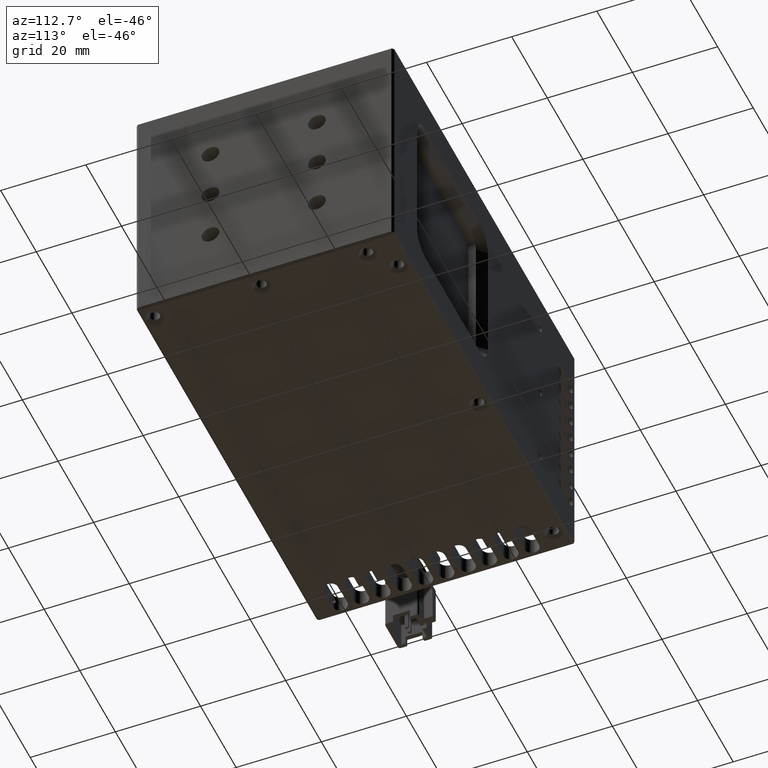
[diagram: clean part render]
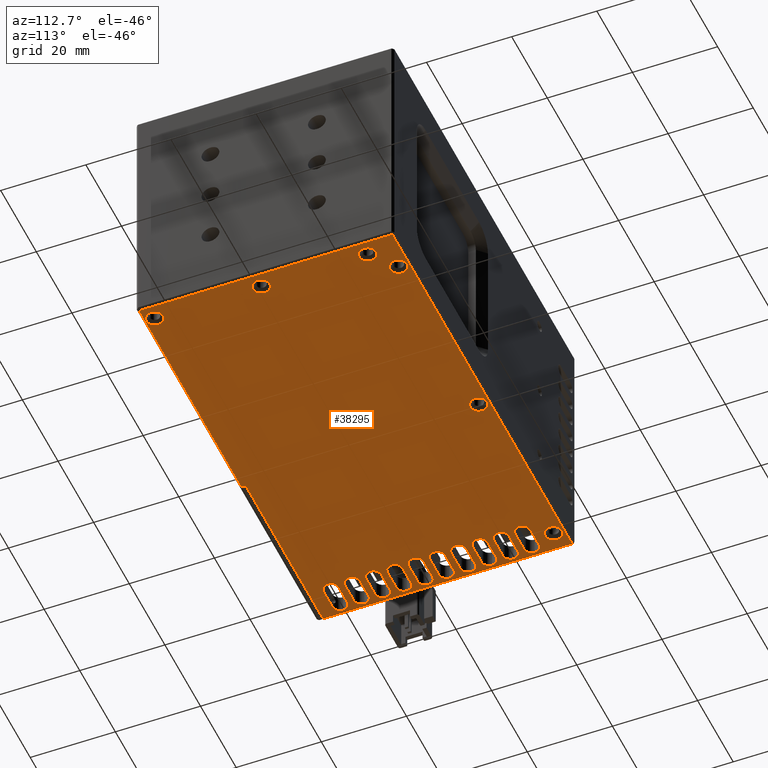
[diagram: same view with one face highlighted and labeled with its STEP entity id]
A machine part, auxiliary view. The second image highlights one B-rep face of the part: STEP entity #38295.
In plain terms, the highlighted planar face has unit normal (0, -0, 1).
Its self-contained STEP definition (entity closure, byte-faithful):
#146 = VERTEX_POINT ( 'NONE', #67677 ) ;
#159 = EDGE_CURVE ( 'NONE', #49219, #55773, #52544, .T. ) ;
#222 = DIRECTION ( 'NONE',  ( -1.000000000000000000, -0.0000000000000000000, 0.0000000000000000000 ) ) ;
#243 = VECTOR ( 'NONE', #44348, 1000.000000000000000 ) ;
#397 = CARTESIAN_POINT ( 'NONE',  ( 33.42575077608847800, -7.223006669097340900, 9.549652735252323100E-012 ) ) ;
#432 = DIRECTION ( 'NONE',  ( -0.0000000000000000000, -0.0000000000000000000, -1.000000000000000000 ) ) ;
#605 = DIRECTION ( 'NONE',  ( 0.0000000000000000000, 0.0000000000000000000, -1.000000000000000000 ) ) ;
#653 = CARTESIAN_POINT ( 'NONE',  ( -60.57424922391150800, 25.52599333090264000, 9.549652735252323100E-012 ) ) ;
#772 = DIRECTION ( 'NONE',  ( 1.000000000000000000, 0.0000000000000000000, -0.0000000000000000000 ) ) ;
#947 = LINE ( 'NONE', #57857, #29126 ) ;
#1375 = ORIENTED_EDGE ( 'NONE', *, *, #4445, .F. ) ;
#1410 = ORIENTED_EDGE ( 'NONE', *, *, #66825, .F. ) ;
#1553 = EDGE_LOOP ( 'NONE', ( #23253, #20449, #25159, #62394, #11263 ) ) ;
#1564 = VERTEX_POINT ( 'NONE', #19319 ) ;
#1671 = AXIS2_PLACEMENT_3D ( 'NONE', #5144, #42295, #10448 ) ;
#1757 = CARTESIAN_POINT ( 'NONE',  ( 23.42575077608848800, 49.77699333090261300, -4.729376612555569200E-011 ) ) ;
#1788 = VERTEX_POINT ( 'NONE', #36978 ) ;
#1918 = LINE ( 'NONE', #39029, #243 ) ;
#2104 = LINE ( 'NONE', #59183, #53509 ) ;
#2108 = CARTESIAN_POINT ( 'NONE',  ( 29.42575077608846700, 45.02699333090264100, 9.549652735252323100E-012 ) ) ;
#2237 = CARTESIAN_POINT ( 'NONE',  ( -67.32424922391153600, 33.77599333090262900, 9.547918011776346200E-012 ) ) ;
#2503 = CIRCLE ( 'NONE', #4026, 1.750000000000001600 ) ;
#2616 = CARTESIAN_POINT ( 'NONE',  ( -67.32424922391152200, 23.77599333090263700, 9.547918011776346200E-012 ) ) ;
#2688 = DIRECTION ( 'NONE',  ( -1.000000000000000000, 0.0000000000000000000, 0.0000000000000000000 ) ) ;
#2730 = AXIS2_PLACEMENT_3D ( 'NONE', #27234, #64318, #32608 ) ;
#2892 = EDGE_CURVE ( 'NONE', #65275, #54773, #36508, .T. ) ;
#2955 = EDGE_LOOP ( 'NONE', ( #34500, #15424 ) ) ;
#2997 = LINE ( 'NONE', #19828, #65205 ) ;
#3525 = CARTESIAN_POINT ( 'NONE',  ( 21.42575077608801900, 49.77699333090261300, -4.729376612555569200E-011 ) ) ;
#3727 = ORIENTED_EDGE ( 'NONE', *, *, #41722, .F. ) ;
#3840 = CIRCLE ( 'NONE', #33547, 1.750000000000001600 ) ;
#4026 = AXIS2_PLACEMENT_3D ( 'NONE', #30935, #67976, #36264 ) ;
#4211 = CARTESIAN_POINT ( 'NONE',  ( 33.42575077608847800, 22.02599333090263300, 9.549652735252323100E-012 ) ) ;
#4232 = VERTEX_POINT ( 'NONE', #20162 ) ;
#4268 = CARTESIAN_POINT ( 'NONE',  ( -60.57424922391149400, -2.974006669097365700, 9.549652735252323100E-012 ) ) ;
#4395 = EDGE_LOOP ( 'NONE', ( #8053, #37579, #30232, #18917, #43261 ) ) ;
#4410 = CARTESIAN_POINT ( 'NONE',  ( -68.07424922391152200, 52.77699333090263400, 9.549652735252323100E-012 ) ) ;
#4445 = EDGE_CURVE ( 'NONE', #14916, #47073, #14372, .T. ) ;
#4515 = LINE ( 'NONE', #68487, #45181 ) ;
#4652 = CARTESIAN_POINT ( 'NONE',  ( -65.57424922391152200, 17.02599333090263300, 9.547918011776346200E-012 ) ) ;
#4666 = VERTEX_POINT ( 'NONE', #56517 ) ;
#4813 = DIRECTION ( 'NONE',  ( -0.0000000000000000000, -0.0000000000000000000, -1.000000000000000000 ) ) ;
#4930 = EDGE_LOOP ( 'NONE', ( #19840, #1410, #52375, #3727, #29466 ) ) ;
#5058 = DIRECTION ( 'NONE',  ( -1.000000000000000000, 0.0000000000000000000, 0.0000000000000000000 ) ) ;
#5144 = CARTESIAN_POINT ( 'NONE',  ( -65.57424922391152200, 13.77599333090263500, 9.546183288300369400E-012 ) ) ;
#5145 = CARTESIAN_POINT ( 'NONE',  ( -60.57424922391149400, -1.224006669097364100, 9.549652735252323100E-012 ) ) ;
#5233 = EDGE_CURVE ( 'NONE', #37682, #45220, #33880, .T. ) ;
#5525 = CARTESIAN_POINT ( 'NONE',  ( -60.57424922391150800, 8.775993330902631200, 9.549652735252323100E-012 ) ) ;
#5637 = CIRCLE ( 'NONE', #11765, 1.750000000000001600 ) ;
#5750 = CIRCLE ( 'NONE', #43039, 1.750000000000001600 ) ;
#5881 = EDGE_CURVE ( 'NONE', #4232, #59340, #22772, .T. ) ;
#5928 = CIRCLE ( 'NONE', #51589, 1.750000000000001600 ) ;
#6182 = EDGE_CURVE ( 'NONE', #57569, #43001, #37697, .T. ) ;
#6259 = CARTESIAN_POINT ( 'NONE',  ( -65.57424922391152200, 5.525993330902634800, 9.547050650038357800E-012 ) ) ;
#6282 = EDGE_CURVE ( 'NONE', #52195, #24794, #33492, .T. ) ;
#6324 = AXIS2_PLACEMENT_3D ( 'NONE', #58890, #27122, #64217 ) ;
#6524 = ORIENTED_EDGE ( 'NONE', *, *, #65847, .F. ) ;
#6582 = VERTEX_POINT ( 'NONE', #58506 ) ;
#6781 = CARTESIAN_POINT ( 'NONE',  ( -65.57424922391152200, 40.52599333090263700, 9.549652735252323100E-012 ) ) ;
#6949 = CARTESIAN_POINT ( 'NONE',  ( -67.32424922391152200, 28.77599333090263700, 9.547918011776346200E-012 ) ) ;
#7011 = VERTEX_POINT ( 'NONE', #51479 ) ;
#7058 = DIRECTION ( 'NONE',  ( -1.000000000000000000, 0.0000000000000000000, 0.0000000000000000000 ) ) ;
#7227 = EDGE_CURVE ( 'NONE', #52107, #10742, #59827, .T. ) ;
#7347 = ORIENTED_EDGE ( 'NONE', *, *, #39109, .F. ) ;
#7458 = DIRECTION ( 'NONE',  ( -1.000000000000000000, 0.0000000000000000000, 0.0000000000000000000 ) ) ;
#7514 = CARTESIAN_POINT ( 'NONE',  ( -65.57424922391152200, 38.77599333090265100, 9.549652735252323100E-012 ) ) ;
#7651 = CIRCLE ( 'NONE', #8832, 1.999999999959541000 ) ;
#7829 = EDGE_CURVE ( 'NONE', #56092, #8269, #18941, .T. ) ;
#8053 = ORIENTED_EDGE ( 'NONE', *, *, #8658, .F. ) ;
#8269 = VERTEX_POINT ( 'NONE', #40552 ) ;
#8339 = DIRECTION ( 'NONE',  ( 0.0000000000000000000, -0.0000000000000000000, 1.000000000000000000 ) ) ;
#8409 = VECTOR ( 'NONE', #47661, 1000.000000000000000 ) ;
#8658 = EDGE_CURVE ( 'NONE', #18076, #31564, #12847, .T. ) ;
#8832 = AXIS2_PLACEMENT_3D ( 'NONE', #44356, #12555, #49654 ) ;
#8889 = ORIENTED_EDGE ( 'NONE', *, *, #30536, .F. ) ;
#8929 = DIRECTION ( 'NONE',  ( -0.0000000000000000000, -0.0000000000000000000, -1.000000000000000000 ) ) ;
#8970 = DIRECTION ( 'NONE',  ( -0.0000000000000000000, -0.0000000000000000000, -1.000000000000000000 ) ) ;
#8973 = VERTEX_POINT ( 'NONE', #2237 ) ;
#9135 = CIRCLE ( 'NONE', #59620, 1.750000000000001600 ) ;
#9218 = CARTESIAN_POINT ( 'NONE',  ( -68.07424922391150800, -6.223006669097374700, 9.533545556727335300E-012 ) ) ;
#9251 = CARTESIAN_POINT ( 'NONE',  ( -65.57424922391152200, 22.02599333090263300, 9.548785373514334700E-012 ) ) ;
#9489 = DIRECTION ( 'NONE',  ( -1.000000000000000000, -0.0000000000000000000, 0.0000000000000000000 ) ) ;
#9619 = ORIENTED_EDGE ( 'NONE', *, *, #159, .F. ) ;
#9775 = DIRECTION ( 'NONE',  ( 0.0000000000000000000, 0.0000000000000000000, -1.000000000000000000 ) ) ;
#9897 = DIRECTION ( 'NONE',  ( 0.0000000000000000000, 0.0000000000000000000, -1.000000000000000000 ) ) ;
#9907 = VERTEX_POINT ( 'NONE', #54277 ) ;
#9970 = DIRECTION ( 'NONE',  ( 1.000000000000000000, 0.0000000000000000000, -0.0000000000000000000 ) ) ;
#10120 = AXIS2_PLACEMENT_3D ( 'NONE', #14150, #51248, #19461 ) ;
#10129 = FACE_BOUND ( 'NONE', #14606, .T. ) ;
#10262 = VECTOR ( 'NONE', #222, 1000.000000000000000 ) ;
#10314 = CARTESIAN_POINT ( 'NONE',  ( 32.92575077608847800, -7.223006669097346200, 9.549649598718879800E-012 ) ) ;
#10395 = CARTESIAN_POINT ( 'NONE',  ( 33.42575077608847800, 2.025993330902632100, 9.549652735252323100E-012 ) ) ;
#10448 = DIRECTION ( 'NONE',  ( -1.000000000000000000, 0.0000000000000000000, 0.0000000000000000000 ) ) ;
#10449 = DIRECTION ( 'NONE',  ( -1.000000000000000000, 0.0000000000000000000, 0.0000000000000000000 ) ) ;
#10742 = VERTEX_POINT ( 'NONE', #51005 ) ;
#10806 = CARTESIAN_POINT ( 'NONE',  ( -65.57424922391152200, 33.77599333090262900, 9.547918011776346200E-012 ) ) ;
#10852 = DIRECTION ( 'NONE',  ( -1.000000000000000000, 0.0000000000000000000, 0.0000000000000000000 ) ) ;
#11027 = VERTEX_POINT ( 'NONE', #6259 ) ;
#11054 = DIRECTION ( 'NONE',  ( 1.000000000000000000, 0.0000000000000000000, -0.0000000000000000000 ) ) ;
#11096 = CARTESIAN_POINT ( 'NONE',  ( -65.57424922391150800, -1.224006669097364100, 9.544448564824392600E-012 ) ) ;
#11121 = CIRCLE ( 'NONE', #24382, 2.000000000000466700 ) ;
#11256 = ORIENTED_EDGE ( 'NONE', *, *, #46602, .F. ) ;
#11263 = ORIENTED_EDGE ( 'NONE', *, *, #49948, .F. ) ;
#11421 = EDGE_CURVE ( 'NONE', #28010, #55962, #4515, .T. ) ;
#11453 = EDGE_CURVE ( 'NONE', #31185, #35876, #16910, .T. ) ;
#11456 = EDGE_LOOP ( 'NONE', ( #58015, #6524, #44463, #39082, #18533 ) ) ;
#11504 = CARTESIAN_POINT ( 'NONE',  ( 33.42575077608847800, 17.02599333090263300, 9.549652735252323100E-012 ) ) ;
#11519 = CARTESIAN_POINT ( 'NONE',  ( -65.57424922391152200, 37.02599333090262900, 9.549652735252323100E-012 ) ) ;
#11645 = ORIENTED_EDGE ( 'NONE', *, *, #6182, .F. ) ;
#11765 = AXIS2_PLACEMENT_3D ( 'NONE', #40749, #8929, #46066 ) ;
#11815 = FACE_BOUND ( 'NONE', #4395, .T. ) ;
#11937 = DIRECTION ( 'NONE',  ( -0.0000000000000000000, -0.0000000000000000000, -1.000000000000000000 ) ) ;
#12376 = EDGE_CURVE ( 'NONE', #54773, #4232, #58124, .T. ) ;
#12383 = DIRECTION ( 'NONE',  ( -1.000000000000000000, -0.0000000000000000000, 0.0000000000000000000 ) ) ;
#12555 = DIRECTION ( 'NONE',  ( 0.0000000000000000000, 0.0000000000000000000, -1.000000000000000000 ) ) ;
#12745 = LINE ( 'NONE', #52080, #41003 ) ;
#12822 = DIRECTION ( 'NONE',  ( -1.000000000000000000, 0.0000000000000000000, 0.0000000000000000000 ) ) ;
#12847 = CIRCLE ( 'NONE', #49969, 1.750000000000001600 ) ;
#13186 = CARTESIAN_POINT ( 'NONE',  ( -63.57424922391151500, 49.77699333090261300, 9.549652735252323100E-012 ) ) ;
#13388 = CARTESIAN_POINT ( 'NONE',  ( -65.57424922391152200, 23.77599333090263700, 9.547918011776346200E-012 ) ) ;
#13453 = FACE_OUTER_BOUND ( 'NONE', #15885, .T. ) ;
#13571 = CARTESIAN_POINT ( 'NONE',  ( 33.42575077608847800, -6.223006669097360400, 9.549652735252323100E-012 ) ) ;
#13580 = LINE ( 'NONE', #10395, #10262 ) ;
#13886 = ORIENTED_EDGE ( 'NONE', *, *, #61163, .F. ) ;
#14150 = CARTESIAN_POINT ( 'NONE',  ( 29.42575077608847100, 20.02699333090263400, 9.549652735252323100E-012 ) ) ;
#14372 = LINE ( 'NONE', #32974, #39329 ) ;
#14447 = EDGE_CURVE ( 'NONE', #54646, #63896, #947, .T. ) ;
#14503 = CARTESIAN_POINT ( 'NONE',  ( -65.57424922391152200, 23.77599333090263700, 9.547918011776346200E-012 ) ) ;
#14606 = EDGE_LOOP ( 'NONE', ( #55167, #1375, #52347, #59177, #47914 ) ) ;
#14620 = VECTOR ( 'NONE', #62404, 1000.000000000000000 ) ;
#14624 = ORIENTED_EDGE ( 'NONE', *, *, #50798, .F. ) ;
#14916 = VERTEX_POINT ( 'NONE', #20677 ) ;
#15103 = FACE_BOUND ( 'NONE', #2955, .T. ) ;
#15154 = CARTESIAN_POINT ( 'NONE',  ( 27.42575077617351200, -4.973006669097366700, 9.549652735252323100E-012 ) ) ;
#15188 = DIRECTION ( 'NONE',  ( 0.0000000000000000000, 0.0000000000000000000, -1.000000000000000000 ) ) ;
#15398 = ORIENTED_EDGE ( 'NONE', *, *, #12376, .F. ) ;
#15424 = ORIENTED_EDGE ( 'NONE', *, *, #15943, .F. ) ;
#15612 = CARTESIAN_POINT ( 'NONE',  ( 33.42575077608847800, 5.525993330902634800, 9.549652735252323100E-012 ) ) ;
#15819 = CARTESIAN_POINT ( 'NONE',  ( -60.57424922391152200, 33.77599333090262900, 9.549652735252323100E-012 ) ) ;
#15885 = EDGE_LOOP ( 'NONE', ( #43182, #39161, #16510, #41350, #27821, #15398 ) ) ;
#15943 = EDGE_CURVE ( 'NONE', #7011, #45298, #41952, .T. ) ;
#15953 = EDGE_CURVE ( 'NONE', #59732, #62339, #27804, .T. ) ;
#16073 = CARTESIAN_POINT ( 'NONE',  ( -60.57424922391152200, 42.02599333090263700, 9.549652735252323100E-012 ) ) ;
#16102 = DIRECTION ( 'NONE',  ( -1.000000000000000000, 0.0000000000000000000, 0.0000000000000000000 ) ) ;
#16167 = CARTESIAN_POINT ( 'NONE',  ( 29.42575077608846700, 45.02699333090264100, 9.549652735252323100E-012 ) ) ;
#16211 = CARTESIAN_POINT ( 'NONE',  ( -65.57424922391152200, 18.77599333090263300, 9.546183288300369400E-012 ) ) ;
#16398 = DIRECTION ( 'NONE',  ( -1.000000000000000000, 0.0000000000000000000, 0.0000000000000000000 ) ) ;
#16444 = CIRCLE ( 'NONE', #52892, 1.750000000000001600 ) ;
#16510 = ORIENTED_EDGE ( 'NONE', *, *, #38811, .F. ) ;
#16581 = EDGE_CURVE ( 'NONE', #59340, #50258, #38756, .T. ) ;
#16717 = EDGE_CURVE ( 'NONE', #36327, #59147, #51929, .T. ) ;
#16815 = DIRECTION ( 'NONE',  ( -1.000000000000000000, -0.0000000000000000000, 0.0000000000000000000 ) ) ;
#16910 = CIRCLE ( 'NONE', #51979, 1.750000000000001600 ) ;
#16999 = EDGE_CURVE ( 'NONE', #55773, #35192, #59404, .T. ) ;
#17236 = CIRCLE ( 'NONE', #31712, 1.999999999875865100 ) ;
#17266 = CARTESIAN_POINT ( 'NONE',  ( -65.57424922391152200, 8.775993330902631200, 9.546183288300369400E-012 ) ) ;
#17276 = EDGE_CURVE ( 'NONE', #35876, #23870, #36943, .T. ) ;
#17412 = DIRECTION ( 'NONE',  ( 0.0000000000000000000, 0.0000000000000000000, -1.000000000000000000 ) ) ;
#17460 = AXIS2_PLACEMENT_3D ( 'NONE', #16167, #53270, #21508 ) ;
#17923 = EDGE_CURVE ( 'NONE', #43001, #57569, #7651, .T. ) ;
#18034 = AXIS2_PLACEMENT_3D ( 'NONE', #19305, #56421, #24630 ) ;
#18076 = VERTEX_POINT ( 'NONE', #55659 ) ;
#18095 = DIRECTION ( 'NONE',  ( -0.0000000000000000000, -0.0000000000000000000, -1.000000000000000000 ) ) ;
#18368 = DIRECTION ( 'NONE',  ( 1.000000000000000000, 0.0000000000000000000, -0.0000000000000000000 ) ) ;
#18492 = DIRECTION ( 'NONE',  ( -1.000000000000000000, 0.0000000000000000000, 0.0000000000000000000 ) ) ;
#18533 = ORIENTED_EDGE ( 'NONE', *, *, #30016, .F. ) ;
#18611 = EDGE_CURVE ( 'NONE', #60261, #9907, #20646, .T. ) ;
#18641 = CARTESIAN_POINT ( 'NONE',  ( -65.57424922391152200, 27.02599333090263300, 9.548785373514334700E-012 ) ) ;
#18680 = ORIENTED_EDGE ( 'NONE', *, *, #42669, .F. ) ;
#18687 = DIRECTION ( 'NONE',  ( -1.000000000000000000, 0.0000000000000000000, 0.0000000000000000000 ) ) ;
#18742 = PLANE ( 'NONE',  #61732 ) ;
#18883 = DIRECTION ( 'NONE',  ( 1.000000000000000000, 0.0000000000000000000, -0.0000000000000000000 ) ) ;
#18893 = CARTESIAN_POINT ( 'NONE',  ( -24.57424922391152900, -7.223006669097342700, 9.546159482177516300E-012 ) ) ;
#18917 = ORIENTED_EDGE ( 'NONE', *, *, #18611, .F. ) ;
#18941 = LINE ( 'NONE', #47082, #33122 ) ;
#19007 = CIRCLE ( 'NONE', #54944, 1.750000000000001600 ) ;
#19012 = ORIENTED_EDGE ( 'NONE', *, *, #36361, .F. ) ;
#19114 = EDGE_CURVE ( 'NONE', #58370, #11027, #5928, .T. ) ;
#19193 = ORIENTED_EDGE ( 'NONE', *, *, #26063, .F. ) ;
#19224 = VERTEX_POINT ( 'NONE', #35258 ) ;
#19268 = DIRECTION ( 'NONE',  ( -0.0000000000000000000, -0.0000000000000000000, -1.000000000000000000 ) ) ;
#19305 = CARTESIAN_POINT ( 'NONE',  ( -65.57424922391152200, 28.77599333090263700, 9.547918011776346200E-012 ) ) ;
#19319 = CARTESIAN_POINT ( 'NONE',  ( 31.42575077600342200, 45.02699333090264100, 9.549652735252323100E-012 ) ) ;
#19414 = AXIS2_PLACEMENT_3D ( 'NONE', #40798, #8970, #46112 ) ;
#19461 = DIRECTION ( 'NONE',  ( -1.000000000000000000, 0.0000000000000000000, 0.0000000000000000000 ) ) ;
#19760 = CARTESIAN_POINT ( 'NONE',  ( -60.57424922391150800, 22.02599333090263300, 9.549652735252323100E-012 ) ) ;
#19828 = CARTESIAN_POINT ( 'NONE',  ( 33.42575077608847800, 42.02599333090263700, 9.549652735252323100E-012 ) ) ;
#19840 = ORIENTED_EDGE ( 'NONE', *, *, #50918, .F. ) ;
#19850 = DIRECTION ( 'NONE',  ( -1.000000000000000000, 0.0000000000000000000, 0.0000000000000000000 ) ) ;
#19919 = EDGE_CURVE ( 'NONE', #62722, #67378, #53894, .T. ) ;
#20071 = DIRECTION ( 'NONE',  ( 1.000000000000000000, 0.0000000000000000000, -0.0000000000000000000 ) ) ;
#20104 = CARTESIAN_POINT ( 'NONE',  ( 32.92575077608847800, 52.77699333090263400, 9.549652735252323100E-012 ) ) ;
#20162 = CARTESIAN_POINT ( 'NONE',  ( 32.92575077608847800, 52.27699333090263400, 9.547759718259163400E-012 ) ) ;
#20304 = CARTESIAN_POINT ( 'NONE',  ( -60.57424922391150800, 17.02599333090263300, 9.549652735252323100E-012 ) ) ;
#20449 = ORIENTED_EDGE ( 'NONE', *, *, #22363, .F. ) ;
#20570 = CARTESIAN_POINT ( 'NONE',  ( -65.57424922391150800, 0.5259933309026375600, 9.547050650038357800E-012 ) ) ;
#20646 = CIRCLE ( 'NONE', #23527, 1.750000000000001600 ) ;
#20656 = LINE ( 'NONE', #30809, #47277 ) ;
#20677 = CARTESIAN_POINT ( 'NONE',  ( -65.57424922391152200, 15.52599333090263700, 9.547918011776346200E-012 ) ) ;
#21069 = CIRCLE ( 'NONE', #47261, 1.750000000000001600 ) ;
#21088 = LINE ( 'NONE', #49297, #47710 ) ;
#21106 = LINE ( 'NONE', #67234, #49381 ) ;
#21113 = DIRECTION ( 'NONE',  ( -1.000000000000000000, 0.0000000000000000000, 0.0000000000000000000 ) ) ;
#21203 = CARTESIAN_POINT ( 'NONE',  ( -60.57424922391150800, 13.77599333090263500, 9.549652735252323100E-012 ) ) ;
#21416 = DIRECTION ( 'NONE',  ( -0.0000000000000000000, -0.0000000000000000000, -1.000000000000000000 ) ) ;
#21481 = VERTEX_POINT ( 'NONE', #23169 ) ;
#21508 = DIRECTION ( 'NONE',  ( -1.000000000000000000, 0.0000000000000000000, 0.0000000000000000000 ) ) ;
#21523 = CIRCLE ( 'NONE', #66926, 2.000000000000466700 ) ;
#21528 = ORIENTED_EDGE ( 'NONE', *, *, #41353, .F. ) ;
#21546 = DIRECTION ( 'NONE',  ( -1.000000000000000000, 0.0000000000000000000, 0.0000000000000000000 ) ) ;
#21809 = CARTESIAN_POINT ( 'NONE',  ( 33.42575077608847800, 45.52599333090263700, 9.549652735252323100E-012 ) ) ;
#22335 = VECTOR ( 'NONE', #11054, 1000.000000000000000 ) ;
#22363 = EDGE_CURVE ( 'NONE', #11027, #62722, #50716, .T. ) ;
#22586 = DIRECTION ( 'NONE',  ( -1.000000000000000000, 0.0000000000000000000, 0.0000000000000000000 ) ) ;
#22744 = ORIENTED_EDGE ( 'NONE', *, *, #7829, .F. ) ;
#22754 = EDGE_CURVE ( 'NONE', #55962, #49219, #2503, .T. ) ;
#22772 = LINE ( 'NONE', #63443, #63456 ) ;
#22779 = VECTOR ( 'NONE', #16815, 1000.000000000000000 ) ;
#23169 = CARTESIAN_POINT ( 'NONE',  ( 27.42575077617351200, 45.02699333090264100, 9.549652735252323100E-012 ) ) ;
#23253 = ORIENTED_EDGE ( 'NONE', *, *, #19919, .F. ) ;
#23254 = AXIS2_PLACEMENT_3D ( 'NONE', #30767, #67802, #36104 ) ;
#23290 = CIRCLE ( 'NONE', #62936, 1.750000000000001600 ) ;
#23498 = CARTESIAN_POINT ( 'NONE',  ( -65.57424922391152200, 10.52599333090263300, 9.547918011776346200E-012 ) ) ;
#23527 = AXIS2_PLACEMENT_3D ( 'NONE', #7514, #44627, #12822 ) ;
#23585 = ORIENTED_EDGE ( 'NONE', *, *, #7227, .F. ) ;
#23838 = ORIENTED_EDGE ( 'NONE', *, *, #11421, .F. ) ;
#23870 = VERTEX_POINT ( 'NONE', #4652 ) ;
#24094 = DIRECTION ( 'NONE',  ( 1.000000000000000000, 0.0000000000000000000, -0.0000000000000000000 ) ) ;
#24160 = VERTEX_POINT ( 'NONE', #28484 ) ;
#24182 = FACE_BOUND ( 'NONE', #38004, .T. ) ;
#24254 = CARTESIAN_POINT ( 'NONE',  ( -60.57424922391150800, 20.52599333090263300, 9.549652735252323100E-012 ) ) ;
#24282 = EDGE_CURVE ( 'NONE', #65275, #58100, #32027, .T. ) ;
#24382 = AXIS2_PLACEMENT_3D ( 'NONE', #49233, #17412, #54517 ) ;
#24470 = CIRCLE ( 'NONE', #17460, 1.999999999914955100 ) ;
#24630 = DIRECTION ( 'NONE',  ( -1.000000000000000000, 0.0000000000000000000, 0.0000000000000000000 ) ) ;
#24794 = VERTEX_POINT ( 'NONE', #23498 ) ;
#25159 = ORIENTED_EDGE ( 'NONE', *, *, #19114, .F. ) ;
#25400 = VERTEX_POINT ( 'NONE', #3525 ) ;
#25845 = CARTESIAN_POINT ( 'NONE',  ( -60.57424922391150800, 5.525993330902634800, 9.549652735252323100E-012 ) ) ;
#25874 = DIRECTION ( 'NONE',  ( -1.000000000000000000, -0.0000000000000000000, 0.0000000000000000000 ) ) ;
#25898 = FACE_BOUND ( 'NONE', #29357, .T. ) ;
#26063 = EDGE_CURVE ( 'NONE', #27846, #36223, #20656, .T. ) ;
#26173 = CIRCLE ( 'NONE', #53413, 1.750000000000001600 ) ;
#26320 = CARTESIAN_POINT ( 'NONE',  ( -65.57424922391152200, 25.52599333090264000, 9.548785373514334700E-012 ) ) ;
#26597 = DIRECTION ( 'NONE',  ( -1.000000000000000000, 0.0000000000000000000, 0.0000000000000000000 ) ) ;
#26787 = ORIENTED_EDGE ( 'NONE', *, *, #33120, .F. ) ;
#27122 = DIRECTION ( 'NONE',  ( 0.0000000000000000000, 0.0000000000000000000, -1.000000000000000000 ) ) ;
#27234 = CARTESIAN_POINT ( 'NONE',  ( -60.57424922391150800, 28.77599333090263700, 9.549652735252323100E-012 ) ) ;
#27588 = FACE_BOUND ( 'NONE', #41497, .T. ) ;
#27740 = DIRECTION ( 'NONE',  ( -1.000000000000000000, -0.0000000000000000000, 0.0000000000000000000 ) ) ;
#27804 = CIRCLE ( 'NONE', #35824, 1.750000000000001600 ) ;
#27821 = ORIENTED_EDGE ( 'NONE', *, *, #5881, .F. ) ;
#27842 = CARTESIAN_POINT ( 'NONE',  ( -65.57424922391152200, 3.775993330902633400, 9.544448564824392600E-012 ) ) ;
#27846 = VERTEX_POINT ( 'NONE', #34026 ) ;
#27862 = AXIS2_PLACEMENT_3D ( 'NONE', #5525, #42675, #10852 ) ;
#27991 = EDGE_CURVE ( 'NONE', #8973, #6582, #5637, .T. ) ;
#28010 = VERTEX_POINT ( 'NONE', #26320 ) ;
#28065 = CARTESIAN_POINT ( 'NONE',  ( -65.57424922391152200, 43.77599333090263700, 9.549652735252323100E-012 ) ) ;
#28425 = ORIENTED_EDGE ( 'NONE', *, *, #38200, .F. ) ;
#28432 = CIRCLE ( 'NONE', #63050, 1.999999999914955100 ) ;
#28484 = CARTESIAN_POINT ( 'NONE',  ( -65.57424922391152200, 32.02599333090262900, 9.548785373514334700E-012 ) ) ;
#28619 = CARTESIAN_POINT ( 'NONE',  ( -65.57424922378737600, 49.77699333090261300, 9.549652735252323100E-012 ) ) ;
#28639 = AXIS2_PLACEMENT_3D ( 'NONE', #21203, #58346, #26597 ) ;
#28645 = AXIS2_PLACEMENT_3D ( 'NONE', #47019, #15188, #52317 ) ;
#28922 = VERTEX_POINT ( 'NONE', #33033 ) ;
#29090 = EDGE_CURVE ( 'NONE', #62339, #31185, #55114, .T. ) ;
#29126 = VECTOR ( 'NONE', #25874, 1000.000000000000000 ) ;
#29299 = EDGE_LOOP ( 'NONE', ( #49075, #11645 ) ) ;
#29357 = EDGE_LOOP ( 'NONE', ( #11256, #53914, #67913, #56818, #51916 ) ) ;
#29466 = ORIENTED_EDGE ( 'NONE', *, *, #38184, .F. ) ;
#29675 = EDGE_CURVE ( 'NONE', #4666, #14916, #60722, .T. ) ;
#29729 = VERTEX_POINT ( 'NONE', #31244 ) ;
#29811 = VECTOR ( 'NONE', #18368, 1000.000000000000000 ) ;
#29920 = VERTEX_POINT ( 'NONE', #32441 ) ;
#30016 = EDGE_CURVE ( 'NONE', #59147, #46695, #21088, .T. ) ;
#30232 = ORIENTED_EDGE ( 'NONE', *, *, #42437, .F. ) ;
#30329 = VECTOR ( 'NONE', #50927, 1000.000000000000000 ) ;
#30536 = EDGE_CURVE ( 'NONE', #25400, #34649, #11121, .T. ) ;
#30537 = ORIENTED_EDGE ( 'NONE', *, *, #64358, .F. ) ;
#30767 = CARTESIAN_POINT ( 'NONE',  ( -60.57424922391150800, 3.775993330902633400, 9.549652735252323100E-012 ) ) ;
#30809 = CARTESIAN_POINT ( 'NONE',  ( 33.42575077608847800, 27.02599333090263300, 9.549652735252323100E-012 ) ) ;
#30935 = CARTESIAN_POINT ( 'NONE',  ( -60.57424922391150800, 23.77599333090263700, 9.549652735252323100E-012 ) ) ;
#31107 = AXIS2_PLACEMENT_3D ( 'NONE', #32425, #605, #37729 ) ;
#31156 = VERTEX_POINT ( 'NONE', #45442 ) ;
#31185 = VERTEX_POINT ( 'NONE', #24254 ) ;
#31244 = CARTESIAN_POINT ( 'NONE',  ( -65.57424922391152200, 45.52599333090263700, 9.549652735252323100E-012 ) ) ;
#31307 = CARTESIAN_POINT ( 'NONE',  ( -65.57424922391152200, 28.77599333090263700, 9.547918011776346200E-012 ) ) ;
#31309 = DIRECTION ( 'NONE',  ( -0.0000000000000000000, -0.0000000000000000000, -1.000000000000000000 ) ) ;
#31564 = VERTEX_POINT ( 'NONE', #37885 ) ;
#31651 = CIRCLE ( 'NONE', #1671, 1.750000000000001600 ) ;
#31702 = DIRECTION ( 'NONE',  ( -1.000000000000000000, -0.0000000000000000000, 0.0000000000000000000 ) ) ;
#31712 = AXIS2_PLACEMENT_3D ( 'NONE', #13186, #50270, #18492 ) ;
#32027 = LINE ( 'NONE', #34998, #30329 ) ;
#32241 = CARTESIAN_POINT ( 'NONE',  ( -65.57424922391150800, -1.224006669097364100, 9.544448564824392600E-012 ) ) ;
#32425 = CARTESIAN_POINT ( 'NONE',  ( -21.57424922391151200, 49.77699333090261300, 6.639307159606033800E-011 ) ) ;
#32440 = EDGE_CURVE ( 'NONE', #40617, #29920, #2997, .T. ) ;
#32441 = CARTESIAN_POINT ( 'NONE',  ( -65.57424922391152200, 42.02599333090263700, 9.549652735252323100E-012 ) ) ;
#32535 = CARTESIAN_POINT ( 'NONE',  ( -60.57424922391150800, 15.52599333090263700, 9.549652735252323100E-012 ) ) ;
#32608 = DIRECTION ( 'NONE',  ( -1.000000000000000000, 0.0000000000000000000, 0.0000000000000000000 ) ) ;
#32962 = CARTESIAN_POINT ( 'NONE',  ( -67.32424922391152200, 18.77599333090263300, 9.546183288300369400E-012 ) ) ;
#32974 = CARTESIAN_POINT ( 'NONE',  ( 33.42575077608847800, 15.52599333090263700, 9.549652735252323100E-012 ) ) ;
#33033 = CARTESIAN_POINT ( 'NONE',  ( -65.57424922391152200, 2.025993330902632100, 9.547050650038357800E-012 ) ) ;
#33120 = EDGE_CURVE ( 'NONE', #36906, #68066, #2104, .T. ) ;
#33122 = VECTOR ( 'NONE', #9970, 1000.000000000000000 ) ;
#33365 = AXIS2_PLACEMENT_3D ( 'NONE', #66178, #34455, #2688 ) ;
#33424 = DIRECTION ( 'NONE',  ( -1.000000000000000000, 0.0000000000000000000, 0.0000000000000000000 ) ) ;
#33492 = CIRCLE ( 'NONE', #33365, 1.750000000000001600 ) ;
#33547 = AXIS2_PLACEMENT_3D ( 'NONE', #11096, #48215, #16398 ) ;
#33725 = CARTESIAN_POINT ( 'NONE',  ( -19.57424922395197000, 49.77699333090261300, 6.639307159606033800E-011 ) ) ;
#33830 = VECTOR ( 'NONE', #12383, 1000.000000000000000 ) ;
#33880 = CIRCLE ( 'NONE', #10120, 1.999999999914958700 ) ;
#33894 = EDGE_CURVE ( 'NONE', #19224, #29729, #44200, .T. ) ;
#34026 = CARTESIAN_POINT ( 'NONE',  ( -60.57424922391150800, 27.02599333090263300, 9.549652735252323100E-012 ) ) ;
#34134 = DIRECTION ( 'NONE',  ( -1.000000000000000000, 0.0000000000000000000, 0.0000000000000000000 ) ) ;
#34157 = CARTESIAN_POINT ( 'NONE',  ( 33.42575077608847800, 20.52599333090263300, 9.549652735252323100E-012 ) ) ;
#34332 = VERTEX_POINT ( 'NONE', #63932 ) ;
#34455 = DIRECTION ( 'NONE',  ( -0.0000000000000000000, -0.0000000000000000000, -1.000000000000000000 ) ) ;
#34500 = ORIENTED_EDGE ( 'NONE', *, *, #60062, .F. ) ;
#34649 = VERTEX_POINT ( 'NONE', #34931 ) ;
#34673 = EDGE_LOOP ( 'NONE', ( #23585, #38968 ) ) ;
#34931 = CARTESIAN_POINT ( 'NONE',  ( 25.42575077608895400, 49.77699333090261300, -4.729376612555569200E-011 ) ) ;
#34998 = CARTESIAN_POINT ( 'NONE',  ( -24.57424922391152200, -6.223006669097355100, 9.544448564824392600E-012 ) ) ;
#35192 = VERTEX_POINT ( 'NONE', #2616 ) ;
#35258 = CARTESIAN_POINT ( 'NONE',  ( -67.32424922391153600, 43.77599333090263700, 9.549652735252323100E-012 ) ) ;
#35504 = LINE ( 'NONE', #54782, #33830 ) ;
#35529 = DIRECTION ( 'NONE',  ( 1.000000000000000000, 0.0000000000000000000, -0.0000000000000000000 ) ) ;
#35728 = CIRCLE ( 'NONE', #37619, 1.999999999914958700 ) ;
#35824 = AXIS2_PLACEMENT_3D ( 'NONE', #36587, #4813, #41944 ) ;
#35876 = VERTEX_POINT ( 'NONE', #20304 ) ;
#36062 = CIRCLE ( 'NONE', #38369, 1.750000000000001600 ) ;
#36104 = DIRECTION ( 'NONE',  ( -1.000000000000000000, 0.0000000000000000000, 0.0000000000000000000 ) ) ;
#36223 = VERTEX_POINT ( 'NONE', #18641 ) ;
#36264 = DIRECTION ( 'NONE',  ( -1.000000000000000000, 0.0000000000000000000, 0.0000000000000000000 ) ) ;
#36327 = VERTEX_POINT ( 'NONE', #51741 ) ;
#36344 = VERTEX_POINT ( 'NONE', #4268 ) ;
#36349 = VERTEX_POINT ( 'NONE', #46476 ) ;
#36361 = EDGE_CURVE ( 'NONE', #45220, #37682, #35728, .T. ) ;
#36508 = LINE ( 'NONE', #397, #22335 ) ;
#36587 = CARTESIAN_POINT ( 'NONE',  ( -65.57424922391152200, 18.77599333090263300, 9.546183288300369400E-012 ) ) ;
#36643 = DIRECTION ( 'NONE',  ( -1.000000000000000000, 0.0000000000000000000, 0.0000000000000000000 ) ) ;
#36677 = ORIENTED_EDGE ( 'NONE', *, *, #15953, .F. ) ;
#36716 = FACE_BOUND ( 'NONE', #65282, .T. ) ;
#36837 = DIRECTION ( 'NONE',  ( -0.0000000000000000000, -0.0000000000000000000, -1.000000000000000000 ) ) ;
#36906 = VERTEX_POINT ( 'NONE', #20570 ) ;
#36943 = LINE ( 'NONE', #11504, #22779 ) ;
#36978 = CARTESIAN_POINT ( 'NONE',  ( -67.32424922391150800, -1.224006669097364100, 9.544448564824392600E-012 ) ) ;
#37050 = VECTOR ( 'NONE', #772, 1000.000000000000000 ) ;
#37567 = DIRECTION ( 'NONE',  ( -1.000000000000000000, 0.0000000000000000000, 0.0000000000000000000 ) ) ;
#37579 = ORIENTED_EDGE ( 'NONE', *, *, #50313, .F. ) ;
#37619 = AXIS2_PLACEMENT_3D ( 'NONE', #41614, #9775, #46907 ) ;
#37682 = VERTEX_POINT ( 'NONE', #39328 ) ;
#37697 = CIRCLE ( 'NONE', #31107, 1.999999999959541000 ) ;
#37729 = DIRECTION ( 'NONE',  ( -1.000000000000000000, 0.0000000000000000000, 0.0000000000000000000 ) ) ;
#37885 = CARTESIAN_POINT ( 'NONE',  ( -60.57424922391152200, 37.02599333090262900, 9.549652735252323100E-012 ) ) ;
#38004 = EDGE_LOOP ( 'NONE', ( #44920, #50943, #36677, #13886, #45170 ) ) ;
#38135 = DIRECTION ( 'NONE',  ( 1.000000000000000000, 0.0000000000000000000, -0.0000000000000000000 ) ) ;
#38150 = VERTEX_POINT ( 'NONE', #6781 ) ;
#38184 = EDGE_CURVE ( 'NONE', #36349, #24160, #1918, .T. ) ;
#38200 = EDGE_CURVE ( 'NONE', #1564, #21481, #28432, .T. ) ;
#38205 = VECTOR ( 'NONE', #18883, 1000.000000000000000 ) ;
#38295 = ADVANCED_FACE ( 'NONE', ( #13453, #55771, #15103, #27588, #68191, #54123, #40056, #25898, #11815, #66536, #52425, #38401, #24182, #10129, #64897, #50766, #36716 ), #18742, .F. ) ;
#38302 = DIRECTION ( 'NONE',  ( 1.000000000000000000, 0.0000000000000000000, -0.0000000000000000000 ) ) ;
#38369 = AXIS2_PLACEMENT_3D ( 'NONE', #43742, #11937, #49057 ) ;
#38401 = FACE_BOUND ( 'NONE', #48789, .T. ) ;
#38524 = ORIENTED_EDGE ( 'NONE', *, *, #22754, .F. ) ;
#38585 = EDGE_CURVE ( 'NONE', #1788, #36906, #58989, .T. ) ;
#38756 = LINE ( 'NONE', #4410, #65245 ) ;
#38811 = EDGE_CURVE ( 'NONE', #50258, #58100, #66349, .T. ) ;
#38862 = DIRECTION ( 'NONE',  ( 0.0000000000000000000, 0.0000000000000000000, -1.000000000000000000 ) ) ;
#38968 = ORIENTED_EDGE ( 'NONE', *, *, #68796, .F. ) ;
#39029 = CARTESIAN_POINT ( 'NONE',  ( 33.42575077608847800, 32.02599333090262900, 9.549652735252323100E-012 ) ) ;
#39046 = EDGE_LOOP ( 'NONE', ( #58992, #19012 ) ) ;
#39082 = ORIENTED_EDGE ( 'NONE', *, *, #41825, .F. ) ;
#39109 = EDGE_CURVE ( 'NONE', #8269, #27846, #63764, .T. ) ;
#39160 = AXIS2_PLACEMENT_3D ( 'NONE', #13388, #50475, #18687 ) ;
#39161 = ORIENTED_EDGE ( 'NONE', *, *, #24282, .T. ) ;
#39241 = DIRECTION ( 'NONE',  ( 0.0000000000000000000, 0.0000000000000000000, -1.000000000000000000 ) ) ;
#39328 = CARTESIAN_POINT ( 'NONE',  ( 27.42575077617351200, 20.02699333090263400, 9.549652735252323100E-012 ) ) ;
#39329 = VECTOR ( 'NONE', #38302, 1000.000000000000000 ) ;
#40056 = FACE_BOUND ( 'NONE', #44129, .T. ) ;
#40121 = EDGE_CURVE ( 'NONE', #31156, #1788, #3840, .T. ) ;
#40162 = CARTESIAN_POINT ( 'NONE',  ( 33.42575077608847800, 52.77699333090263400, 9.549652735252323100E-012 ) ) ;
#40552 = CARTESIAN_POINT ( 'NONE',  ( -60.57424922391150800, 30.52599333090263700, 9.549652735252323100E-012 ) ) ;
#40617 = VERTEX_POINT ( 'NONE', #16073 ) ;
#40749 = CARTESIAN_POINT ( 'NONE',  ( -65.57424922391152200, 33.77599333090262900, 9.547918011776346200E-012 ) ) ;
#40798 = CARTESIAN_POINT ( 'NONE',  ( -65.57424922391152200, 13.77599333090263500, 9.546183288300369400E-012 ) ) ;
#40874 = CIRCLE ( 'NONE', #18034, 1.750000000000001600 ) ;
#41003 = VECTOR ( 'NONE', #20071, 1000.000000000000000 ) ;
#41130 = EDGE_CURVE ( 'NONE', #63896, #4666, #31651, .T. ) ;
#41210 = DIRECTION ( 'NONE',  ( -1.000000000000000000, -0.0000000000000000000, 0.0000000000000000000 ) ) ;
#41350 = ORIENTED_EDGE ( 'NONE', *, *, #16581, .F. ) ;
#41353 = EDGE_CURVE ( 'NONE', #35192, #28010, #67193, .T. ) ;
#41497 = EDGE_LOOP ( 'NONE', ( #68639, #28425 ) ) ;
#41515 = CARTESIAN_POINT ( 'NONE',  ( -67.32424922391152200, 3.775993330902633400, 9.544448564824392600E-012 ) ) ;
#41614 = CARTESIAN_POINT ( 'NONE',  ( 29.42575077608847100, 20.02699333090263400, 9.549652735252323100E-012 ) ) ;
#41722 = EDGE_CURVE ( 'NONE', #24160, #8973, #64638, .T. ) ;
#41726 = CARTESIAN_POINT ( 'NONE',  ( 29.42575077608848100, -4.973006669097366700, 9.549652735252323100E-012 ) ) ;
#41825 = EDGE_CURVE ( 'NONE', #46695, #52195, #16444, .T. ) ;
#41944 = DIRECTION ( 'NONE',  ( -1.000000000000000000, 0.0000000000000000000, 0.0000000000000000000 ) ) ;
#41952 = CIRCLE ( 'NONE', #28645, 1.999999999914969100 ) ;
#42281 = EDGE_CURVE ( 'NONE', #29729, #146, #66873, .T. ) ;
#42295 = DIRECTION ( 'NONE',  ( -0.0000000000000000000, -0.0000000000000000000, -1.000000000000000000 ) ) ;
#42296 = DIRECTION ( 'NONE',  ( -0.0000000000000000000, -0.0000000000000000000, -1.000000000000000000 ) ) ;
#42437 = EDGE_CURVE ( 'NONE', #9907, #38150, #26173, .T. ) ;
#42669 = EDGE_CURVE ( 'NONE', #50051, #56092, #21069, .T. ) ;
#42675 = DIRECTION ( 'NONE',  ( -0.0000000000000000000, -0.0000000000000000000, -1.000000000000000000 ) ) ;
#42734 = EDGE_CURVE ( 'NONE', #21481, #1564, #24470, .T. ) ;
#42911 = LINE ( 'NONE', #57056, #14620 ) ;
#43001 = VERTEX_POINT ( 'NONE', #50459 ) ;
#43039 = AXIS2_PLACEMENT_3D ( 'NONE', #51049, #19268, #56385 ) ;
#43182 = ORIENTED_EDGE ( 'NONE', *, *, #2892, .F. ) ;
#43261 = ORIENTED_EDGE ( 'NONE', *, *, #64141, .F. ) ;
#43667 = CARTESIAN_POINT ( 'NONE',  ( -24.57424922391152200, -6.223006669097356000, 9.544448564824392600E-012 ) ) ;
#43742 = CARTESIAN_POINT ( 'NONE',  ( -60.57424922391152200, 43.77599333090263700, 9.549652735252323100E-012 ) ) ;
#44129 = EDGE_LOOP ( 'NONE', ( #8889, #50161 ) ) ;
#44200 = CIRCLE ( 'NONE', #59902, 1.750000000000001600 ) ;
#44348 = DIRECTION ( 'NONE',  ( -1.000000000000000000, -0.0000000000000000000, 0.0000000000000000000 ) ) ;
#44356 = CARTESIAN_POINT ( 'NONE',  ( -21.57424922391151200, 49.77699333090261300, 6.639307159606033800E-011 ) ) ;
#44463 = ORIENTED_EDGE ( 'NONE', *, *, #6282, .F. ) ;
#44627 = DIRECTION ( 'NONE',  ( -0.0000000000000000000, -0.0000000000000000000, -1.000000000000000000 ) ) ;
#44695 = EDGE_LOOP ( 'NONE', ( #7347, #22744, #18680, #14624, #19193 ) ) ;
#44920 = ORIENTED_EDGE ( 'NONE', *, *, #11453, .F. ) ;
#45080 = CIRCLE ( 'NONE', #54843, 1.999999999914969100 ) ;
#45170 = ORIENTED_EDGE ( 'NONE', *, *, #17276, .F. ) ;
#45181 = VECTOR ( 'NONE', #52951, 1000.000000000000000 ) ;
#45220 = VERTEX_POINT ( 'NONE', #51118 ) ;
#45298 = VERTEX_POINT ( 'NONE', #15154 ) ;
#45442 = CARTESIAN_POINT ( 'NONE',  ( -65.57424922391150800, -2.974006669097365700, 9.547050650038357800E-012 ) ) ;
#45478 = DIRECTION ( 'NONE',  ( 1.000000000000000000, 0.0000000000000000000, -0.0000000000000000000 ) ) ;
#45865 = CIRCLE ( 'NONE', #28639, 1.750000000000001600 ) ;
#46066 = DIRECTION ( 'NONE',  ( -1.000000000000000000, 0.0000000000000000000, 0.0000000000000000000 ) ) ;
#46112 = DIRECTION ( 'NONE',  ( -1.000000000000000000, 0.0000000000000000000, 0.0000000000000000000 ) ) ;
#46476 = CARTESIAN_POINT ( 'NONE',  ( -60.57424922391152200, 32.02599333090262900, 9.549652735252323100E-012 ) ) ;
#46602 = EDGE_CURVE ( 'NONE', #146, #40617, #36062, .T. ) ;
#46695 = VERTEX_POINT ( 'NONE', #55028 ) ;
#46907 = DIRECTION ( 'NONE',  ( -1.000000000000000000, 0.0000000000000000000, 0.0000000000000000000 ) ) ;
#47019 = CARTESIAN_POINT ( 'NONE',  ( 29.42575077608848100, -4.973006669097366700, 9.549652735252323100E-012 ) ) ;
#47024 = DIRECTION ( 'NONE',  ( -1.000000000000000000, 0.0000000000000000000, 0.0000000000000000000 ) ) ;
#47073 = VERTEX_POINT ( 'NONE', #32535 ) ;
#47082 = CARTESIAN_POINT ( 'NONE',  ( 33.42575077608847800, 30.52599333090263700, 9.549652735252323100E-012 ) ) ;
#47261 = AXIS2_PLACEMENT_3D ( 'NONE', #31307, #68347, #36643 ) ;
#47277 = VECTOR ( 'NONE', #62535, 1000.000000000000000 ) ;
#47661 = DIRECTION ( 'NONE',  ( 1.000000000000000000, 0.0000000000000000000, -0.0000000000000000000 ) ) ;
#47710 = VECTOR ( 'NONE', #27740, 1000.000000000000000 ) ;
#47914 = ORIENTED_EDGE ( 'NONE', *, *, #14447, .F. ) ;
#47925 = DIRECTION ( 'NONE',  ( -0.0000000000000000000, -0.0000000000000000000, -1.000000000000000000 ) ) ;
#48215 = DIRECTION ( 'NONE',  ( -0.0000000000000000000, -0.0000000000000000000, -1.000000000000000000 ) ) ;
#48434 = CARTESIAN_POINT ( 'NONE',  ( -65.57424922391152200, 20.52599333090263300, 9.547918011776346200E-012 ) ) ;
#48789 = EDGE_LOOP ( 'NONE', ( #38524, #23838, #21528, #67088, #9619 ) ) ;
#49057 = DIRECTION ( 'NONE',  ( -1.000000000000000000, 0.0000000000000000000, 0.0000000000000000000 ) ) ;
#49075 = ORIENTED_EDGE ( 'NONE', *, *, #17923, .F. ) ;
#49219 = VERTEX_POINT ( 'NONE', #19760 ) ;
#49233 = CARTESIAN_POINT ( 'NONE',  ( 23.42575077608848800, 49.77699333090261300, -4.729376612555569200E-011 ) ) ;
#49297 = CARTESIAN_POINT ( 'NONE',  ( 33.42575077608847800, 7.025993330902629500, 9.549652735252323100E-012 ) ) ;
#49381 = VECTOR ( 'NONE', #35529, 1000.000000000000000 ) ;
#49654 = DIRECTION ( 'NONE',  ( -1.000000000000000000, 0.0000000000000000000, 0.0000000000000000000 ) ) ;
#49887 = CARTESIAN_POINT ( 'NONE',  ( -65.57424922391152200, 38.77599333090265100, 9.549652735252323100E-012 ) ) ;
#49948 = EDGE_CURVE ( 'NONE', #67378, #28922, #13580, .T. ) ;
#49969 = AXIS2_PLACEMENT_3D ( 'NONE', #68532, #36837, #5058 ) ;
#50051 = VERTEX_POINT ( 'NONE', #6949 ) ;
#50078 = AXIS2_PLACEMENT_3D ( 'NONE', #14503, #51620, #19850 ) ;
#50161 = ORIENTED_EDGE ( 'NONE', *, *, #65747, .F. ) ;
#50258 = VERTEX_POINT ( 'NONE', #9218 ) ;
#50270 = DIRECTION ( 'NONE',  ( 0.0000000000000000000, 0.0000000000000000000, -1.000000000000000000 ) ) ;
#50313 = EDGE_CURVE ( 'NONE', #38150, #18076, #12745, .T. ) ;
#50459 = CARTESIAN_POINT ( 'NONE',  ( -23.57424922387105300, 49.77699333090261300, 6.639307159606033800E-011 ) ) ;
#50475 = DIRECTION ( 'NONE',  ( -0.0000000000000000000, -0.0000000000000000000, -1.000000000000000000 ) ) ;
#50716 = LINE ( 'NONE', #15612, #8409 ) ;
#50766 = FACE_BOUND ( 'NONE', #1553, .T. ) ;
#50798 = EDGE_CURVE ( 'NONE', #36223, #50051, #40874, .T. ) ;
#50902 = VECTOR ( 'NONE', #9489, 1000.000000000000000 ) ;
#50918 = EDGE_CURVE ( 'NONE', #34332, #36349, #23290, .T. ) ;
#50927 = DIRECTION ( 'NONE',  ( -1.224646799147353500E-016, 1.000000000000000000, 0.0000000000000000000 ) ) ;
#50943 = ORIENTED_EDGE ( 'NONE', *, *, #29090, .F. ) ;
#51005 = CARTESIAN_POINT ( 'NONE',  ( -61.57424922403564700, 49.77699333090261300, 9.549652735252323100E-012 ) ) ;
#51049 = CARTESIAN_POINT ( 'NONE',  ( -65.57424922391152200, 43.77599333090263700, 9.549652735252323100E-012 ) ) ;
#51118 = CARTESIAN_POINT ( 'NONE',  ( 31.42575077600342900, 20.02699333090263400, 9.549652735252323100E-012 ) ) ;
#51248 = DIRECTION ( 'NONE',  ( 0.0000000000000000000, 0.0000000000000000000, -1.000000000000000000 ) ) ;
#51479 = CARTESIAN_POINT ( 'NONE',  ( 31.42575077600345100, -4.973006669097366700, 9.549652735252323100E-012 ) ) ;
#51589 = AXIS2_PLACEMENT_3D ( 'NONE', #27842, #64935, #34134 ) ;
#51620 = DIRECTION ( 'NONE',  ( -0.0000000000000000000, -0.0000000000000000000, -1.000000000000000000 ) ) ;
#51741 = CARTESIAN_POINT ( 'NONE',  ( -60.57424922391150800, 10.52599333090263300, 9.549652735252323100E-012 ) ) ;
#51816 = CARTESIAN_POINT ( 'NONE',  ( -60.57424922391150800, 12.02599333090263300, 9.549652735252323100E-012 ) ) ;
#51887 = DIRECTION ( 'NONE',  ( 0.0000000000000000000, 1.000000000000000000, 0.0000000000000000000 ) ) ;
#51916 = ORIENTED_EDGE ( 'NONE', *, *, #32440, .F. ) ;
#51929 = CIRCLE ( 'NONE', #27862, 1.750000000000001600 ) ;
#51979 = AXIS2_PLACEMENT_3D ( 'NONE', #53186, #21416, #58547 ) ;
#52080 = CARTESIAN_POINT ( 'NONE',  ( 33.42575077608847800, 40.52599333090263700, 9.549652735252323100E-012 ) ) ;
#52107 = VERTEX_POINT ( 'NONE', #28619 ) ;
#52195 = VERTEX_POINT ( 'NONE', #55742 ) ;
#52317 = DIRECTION ( 'NONE',  ( -1.000000000000000000, 0.0000000000000000000, 0.0000000000000000000 ) ) ;
#52331 = CARTESIAN_POINT ( 'NONE',  ( -65.57424922391152200, 12.02599333090263300, 9.547918011776346200E-012 ) ) ;
#52347 = ORIENTED_EDGE ( 'NONE', *, *, #29675, .F. ) ;
#52375 = ORIENTED_EDGE ( 'NONE', *, *, #27991, .F. ) ;
#52425 = FACE_BOUND ( 'NONE', #44695, .T. ) ;
#52544 = LINE ( 'NONE', #4211, #50902 ) ;
#52892 = AXIS2_PLACEMENT_3D ( 'NONE', #17266, #54367, #22586 ) ;
#52897 = DIRECTION ( 'NONE',  ( -0.0000000000000000000, -0.0000000000000000000, -1.000000000000000000 ) ) ;
#52902 = EDGE_CURVE ( 'NONE', #28922, #58370, #9135, .T. ) ;
#52951 = DIRECTION ( 'NONE',  ( 1.000000000000000000, 0.0000000000000000000, -0.0000000000000000000 ) ) ;
#53186 = CARTESIAN_POINT ( 'NONE',  ( -60.57424922391150800, 18.77599333090263300, 9.549652735252323100E-012 ) ) ;
#53270 = DIRECTION ( 'NONE',  ( 0.0000000000000000000, 0.0000000000000000000, -1.000000000000000000 ) ) ;
#53316 = DIRECTION ( 'NONE',  ( -0.0000000000000000000, -0.0000000000000000000, -1.000000000000000000 ) ) ;
#53413 = AXIS2_PLACEMENT_3D ( 'NONE', #49887, #18095, #55188 ) ;
#53509 = VECTOR ( 'NONE', #38135, 1000.000000000000000 ) ;
#53621 = CARTESIAN_POINT ( 'NONE',  ( -60.57424922391150800, 7.025993330902629500, 9.549652735252323100E-012 ) ) ;
#53834 = ORIENTED_EDGE ( 'NONE', *, *, #40121, .F. ) ;
#53894 = CIRCLE ( 'NONE', #23254, 1.750000000000001600 ) ;
#53914 = ORIENTED_EDGE ( 'NONE', *, *, #42281, .F. ) ;
#54123 = FACE_BOUND ( 'NONE', #29299, .T. ) ;
#54255 = AXIS2_PLACEMENT_3D ( 'NONE', #10806, #47925, #16102 ) ;
#54277 = CARTESIAN_POINT ( 'NONE',  ( -67.32424922391153600, 38.77599333090265100, 9.549652735252323100E-012 ) ) ;
#54367 = DIRECTION ( 'NONE',  ( -0.0000000000000000000, -0.0000000000000000000, -1.000000000000000000 ) ) ;
#54517 = DIRECTION ( 'NONE',  ( -1.000000000000000000, 0.0000000000000000000, 0.0000000000000000000 ) ) ;
#54646 = VERTEX_POINT ( 'NONE', #51816 ) ;
#54773 = VERTEX_POINT ( 'NONE', #10314 ) ;
#54782 = CARTESIAN_POINT ( 'NONE',  ( 33.42575077608847800, 37.02599333090262900, 9.549652735252323100E-012 ) ) ;
#54843 = AXIS2_PLACEMENT_3D ( 'NONE', #41726, #9897, #47024 ) ;
#54944 = AXIS2_PLACEMENT_3D ( 'NONE', #16211, #53316, #21546 ) ;
#55028 = CARTESIAN_POINT ( 'NONE',  ( -65.57424922391152200, 7.025993330902629500, 9.547918011776346200E-012 ) ) ;
#55114 = LINE ( 'NONE', #34157, #67552 ) ;
#55167 = ORIENTED_EDGE ( 'NONE', *, *, #60152, .F. ) ;
#55188 = DIRECTION ( 'NONE',  ( -1.000000000000000000, 0.0000000000000000000, 0.0000000000000000000 ) ) ;
#55485 = CARTESIAN_POINT ( 'NONE',  ( 33.42575077608847800, 10.52599333090263300, 9.549652735252323100E-012 ) ) ;
#55659 = CARTESIAN_POINT ( 'NONE',  ( -60.57424922391152200, 40.52599333090263700, 9.549652735252323100E-012 ) ) ;
#55742 = CARTESIAN_POINT ( 'NONE',  ( -67.32424922391152200, 8.775993330902631200, 9.546183288300369400E-012 ) ) ;
#55771 = FACE_BOUND ( 'NONE', #39046, .T. ) ;
#55773 = VERTEX_POINT ( 'NONE', #9251 ) ;
#55962 = VERTEX_POINT ( 'NONE', #653 ) ;
#56014 = CARTESIAN_POINT ( 'NONE',  ( -65.57424922391152200, 30.52599333090263700, 9.548785373514334700E-012 ) ) ;
#56092 = VERTEX_POINT ( 'NONE', #56014 ) ;
#56120 = ORIENTED_EDGE ( 'NONE', *, *, #38585, .F. ) ;
#56385 = DIRECTION ( 'NONE',  ( -1.000000000000000000, 0.0000000000000000000, 0.0000000000000000000 ) ) ;
#56421 = DIRECTION ( 'NONE',  ( -0.0000000000000000000, -0.0000000000000000000, -1.000000000000000000 ) ) ;
#56441 = VECTOR ( 'NONE', #51887, 1000.000000000000000 ) ;
#56505 = CARTESIAN_POINT ( 'NONE',  ( -60.57424922391150800, 2.025993330902632100, 9.549652735252323100E-012 ) ) ;
#56517 = CARTESIAN_POINT ( 'NONE',  ( -67.32424922391152200, 13.77599333090263500, 9.546183288300369400E-012 ) ) ;
#56818 = ORIENTED_EDGE ( 'NONE', *, *, #65902, .F. ) ;
#57056 = CARTESIAN_POINT ( 'NONE',  ( 33.42575077608847800, -2.974006669097365700, 9.549652735252323100E-012 ) ) ;
#57569 = VERTEX_POINT ( 'NONE', #33725 ) ;
#57857 = CARTESIAN_POINT ( 'NONE',  ( 33.42575077608847800, 12.02599333090263300, 9.549652735252323100E-012 ) ) ;
#58012 = LINE ( 'NONE', #55485, #29811 ) ;
#58015 = ORIENTED_EDGE ( 'NONE', *, *, #16717, .F. ) ;
#58100 = VERTEX_POINT ( 'NONE', #43667 ) ;
#58124 = LINE ( 'NONE', #20104, #56441 ) ;
#58346 = DIRECTION ( 'NONE',  ( -0.0000000000000000000, -0.0000000000000000000, -1.000000000000000000 ) ) ;
#58370 = VERTEX_POINT ( 'NONE', #41515 ) ;
#58506 = CARTESIAN_POINT ( 'NONE',  ( -65.57424922391152200, 35.52599333090262900, 9.548785373514334700E-012 ) ) ;
#58547 = DIRECTION ( 'NONE',  ( -1.000000000000000000, 0.0000000000000000000, 0.0000000000000000000 ) ) ;
#58890 = CARTESIAN_POINT ( 'NONE',  ( -63.57424922391151500, 49.77699333090261300, 9.549652735252323100E-012 ) ) ;
#58989 = CIRCLE ( 'NONE', #66179, 1.750000000000001600 ) ;
#58992 = ORIENTED_EDGE ( 'NONE', *, *, #5233, .F. ) ;
#59147 = VERTEX_POINT ( 'NONE', #53621 ) ;
#59177 = ORIENTED_EDGE ( 'NONE', *, *, #41130, .F. ) ;
#59183 = CARTESIAN_POINT ( 'NONE',  ( 33.42575077608847800, 0.5259933309026375600, 9.549652735252323100E-012 ) ) ;
#59340 = VERTEX_POINT ( 'NONE', #66346 ) ;
#59404 = CIRCLE ( 'NONE', #50078, 1.750000000000001600 ) ;
#59620 = AXIS2_PLACEMENT_3D ( 'NONE', #63047, #31309, #68348 ) ;
#59732 = VERTEX_POINT ( 'NONE', #32962 ) ;
#59827 = CIRCLE ( 'NONE', #6324, 1.999999999875865100 ) ;
#59902 = AXIS2_PLACEMENT_3D ( 'NONE', #28065, #65147, #33424 ) ;
#60062 = EDGE_CURVE ( 'NONE', #45298, #7011, #45080, .T. ) ;
#60152 = EDGE_CURVE ( 'NONE', #47073, #54646, #45865, .T. ) ;
#60261 = VERTEX_POINT ( 'NONE', #11519 ) ;
#60722 = CIRCLE ( 'NONE', #19414, 1.750000000000001600 ) ;
#61163 = EDGE_CURVE ( 'NONE', #23870, #59732, #19007, .T. ) ;
#61732 = AXIS2_PLACEMENT_3D ( 'NONE', #40162, #8339, #45478 ) ;
#62278 = ORIENTED_EDGE ( 'NONE', *, *, #66125, .F. ) ;
#62339 = VERTEX_POINT ( 'NONE', #48434 ) ;
#62394 = ORIENTED_EDGE ( 'NONE', *, *, #52902, .F. ) ;
#62404 = DIRECTION ( 'NONE',  ( -1.000000000000000000, -0.0000000000000000000, 0.0000000000000000000 ) ) ;
#62535 = DIRECTION ( 'NONE',  ( -1.000000000000000000, -0.0000000000000000000, 0.0000000000000000000 ) ) ;
#62722 = VERTEX_POINT ( 'NONE', #25845 ) ;
#62936 = AXIS2_PLACEMENT_3D ( 'NONE', #15819, #52897, #21113 ) ;
#63047 = CARTESIAN_POINT ( 'NONE',  ( -65.57424922391152200, 3.775993330902633400, 9.544448564824392600E-012 ) ) ;
#63050 = AXIS2_PLACEMENT_3D ( 'NONE', #2108, #39241, #7458 ) ;
#63443 = CARTESIAN_POINT ( 'NONE',  ( 33.42575077608847800, 52.27699333090263400, 9.549652735252323100E-012 ) ) ;
#63456 = VECTOR ( 'NONE', #31702, 1000.000000000000000 ) ;
#63764 = CIRCLE ( 'NONE', #2730, 1.750000000000001600 ) ;
#63896 = VERTEX_POINT ( 'NONE', #52331 ) ;
#63932 = CARTESIAN_POINT ( 'NONE',  ( -60.57424922391152200, 35.52599333090262900, 9.549652735252323100E-012 ) ) ;
#64086 = CARTESIAN_POINT ( 'NONE',  ( -60.57424922391149400, 0.5259933309026375600, 9.549652735252323100E-012 ) ) ;
#64141 = EDGE_CURVE ( 'NONE', #31564, #60261, #35504, .T. ) ;
#64217 = DIRECTION ( 'NONE',  ( -1.000000000000000000, 0.0000000000000000000, 0.0000000000000000000 ) ) ;
#64318 = DIRECTION ( 'NONE',  ( -0.0000000000000000000, -0.0000000000000000000, -1.000000000000000000 ) ) ;
#64358 = EDGE_CURVE ( 'NONE', #36344, #31156, #42911, .T. ) ;
#64638 = CIRCLE ( 'NONE', #54255, 1.750000000000001600 ) ;
#64897 = FACE_BOUND ( 'NONE', #11456, .T. ) ;
#64935 = DIRECTION ( 'NONE',  ( -0.0000000000000000000, -0.0000000000000000000, -1.000000000000000000 ) ) ;
#65147 = DIRECTION ( 'NONE',  ( -0.0000000000000000000, -0.0000000000000000000, -1.000000000000000000 ) ) ;
#65205 = VECTOR ( 'NONE', #41210, 1000.000000000000000 ) ;
#65245 = VECTOR ( 'NONE', #67884, 1000.000000000000000 ) ;
#65275 = VERTEX_POINT ( 'NONE', #18893 ) ;
#65282 = EDGE_LOOP ( 'NONE', ( #62278, #26787, #56120, #53834, #30537 ) ) ;
#65747 = EDGE_CURVE ( 'NONE', #34649, #25400, #21523, .T. ) ;
#65847 = EDGE_CURVE ( 'NONE', #24794, #36327, #58012, .T. ) ;
#65902 = EDGE_CURVE ( 'NONE', #29920, #19224, #5750, .T. ) ;
#66125 = EDGE_CURVE ( 'NONE', #68066, #36344, #67049, .T. ) ;
#66178 = CARTESIAN_POINT ( 'NONE',  ( -65.57424922391152200, 8.775993330902631200, 9.546183288300369400E-012 ) ) ;
#66179 = AXIS2_PLACEMENT_3D ( 'NONE', #32241, #432, #37567 ) ;
#66346 = CARTESIAN_POINT ( 'NONE',  ( -68.07424922391153600, 52.27699333090262000, 9.541506582229353200E-012 ) ) ;
#66349 = LINE ( 'NONE', #13571, #38205 ) ;
#66525 = AXIS2_PLACEMENT_3D ( 'NONE', #5145, #42296, #10449 ) ;
#66536 = FACE_BOUND ( 'NONE', #4930, .T. ) ;
#66825 = EDGE_CURVE ( 'NONE', #6582, #34332, #21106, .T. ) ;
#66873 = LINE ( 'NONE', #21809, #37050 ) ;
#66926 = AXIS2_PLACEMENT_3D ( 'NONE', #1757, #38862, #7058 ) ;
#67049 = CIRCLE ( 'NONE', #66525, 1.750000000000001600 ) ;
#67088 = ORIENTED_EDGE ( 'NONE', *, *, #16999, .F. ) ;
#67193 = CIRCLE ( 'NONE', #39160, 1.750000000000001600 ) ;
#67234 = CARTESIAN_POINT ( 'NONE',  ( 33.42575077608847800, 35.52599333090262900, 9.549652735252323100E-012 ) ) ;
#67378 = VERTEX_POINT ( 'NONE', #56505 ) ;
#67552 = VECTOR ( 'NONE', #24094, 1000.000000000000000 ) ;
#67677 = CARTESIAN_POINT ( 'NONE',  ( -60.57424922391152200, 45.52599333090263700, 9.549652735252323100E-012 ) ) ;
#67802 = DIRECTION ( 'NONE',  ( -0.0000000000000000000, -0.0000000000000000000, -1.000000000000000000 ) ) ;
#67884 = DIRECTION ( 'NONE',  ( -0.0000000000000000000, -1.000000000000000000, -0.0000000000000000000 ) ) ;
#67913 = ORIENTED_EDGE ( 'NONE', *, *, #33894, .F. ) ;
#67976 = DIRECTION ( 'NONE',  ( -0.0000000000000000000, -0.0000000000000000000, -1.000000000000000000 ) ) ;
#68066 = VERTEX_POINT ( 'NONE', #64086 ) ;
#68191 = FACE_BOUND ( 'NONE', #34673, .T. ) ;
#68347 = DIRECTION ( 'NONE',  ( -0.0000000000000000000, -0.0000000000000000000, -1.000000000000000000 ) ) ;
#68348 = DIRECTION ( 'NONE',  ( -1.000000000000000000, 0.0000000000000000000, 0.0000000000000000000 ) ) ;
#68487 = CARTESIAN_POINT ( 'NONE',  ( 33.42575077608847800, 25.52599333090264000, 9.549652735252323100E-012 ) ) ;
#68532 = CARTESIAN_POINT ( 'NONE',  ( -60.57424922391152200, 38.77599333090265100, 9.549652735252323100E-012 ) ) ;
#68639 = ORIENTED_EDGE ( 'NONE', *, *, #42734, .F. ) ;
#68796 = EDGE_CURVE ( 'NONE', #10742, #52107, #17236, .T. ) ;